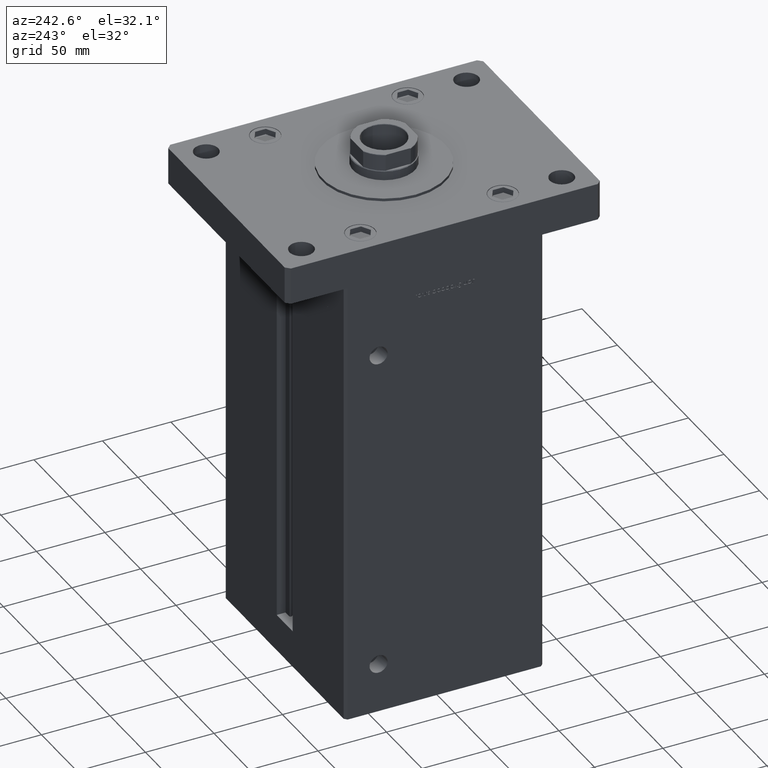
[diagram: clean part render]
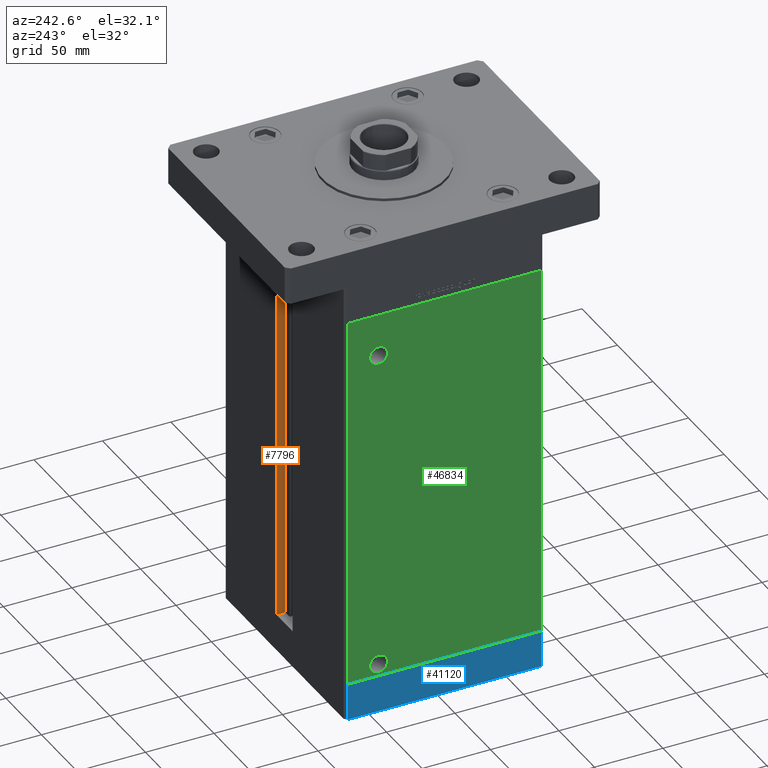
[diagram: same view with three faces highlighted in distinct colors, each labeled with its STEP entity id]
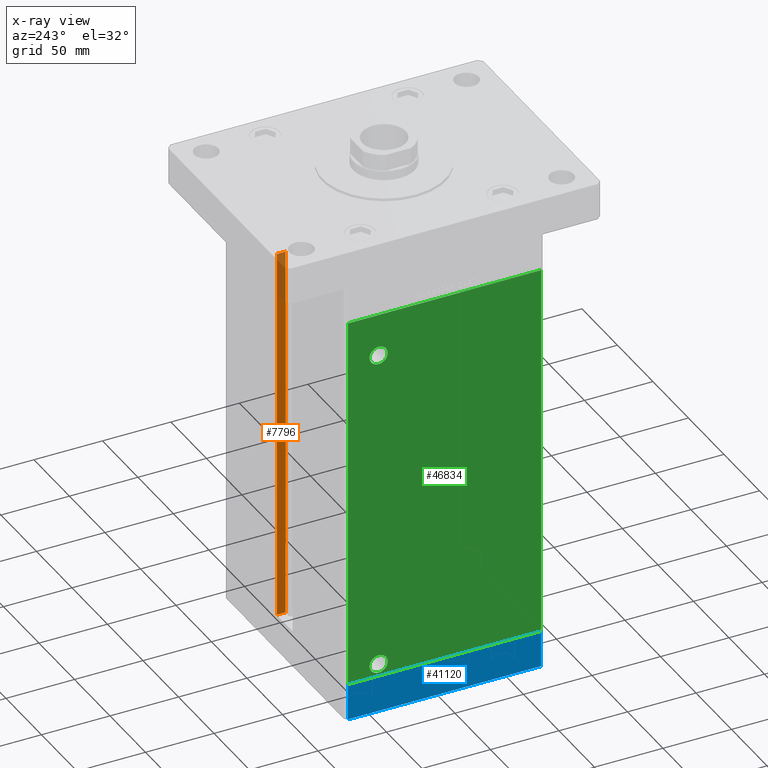
[diagram: x-ray of the same camera — body ghosted, the three highlighted faces saturated]
A machine part, auxiliary view with three faces highlighted in distinct colors.
The next image is the same camera in x-ray (body ghosted, the three faces saturated) — at least one of them is partly hidden behind the body in this view.
Their STEP definitions:

[orange] entity #7796 — the highlighted planar face has unit normal (1, 0, 0).
#1985 = CARTESIAN_POINT ( 'NONE',  ( 11.25000000000000178, 72.49999999999998579, 0.000000000000000000 ) ) ;
#2311 = DIRECTION ( 'NONE',  ( 1.000000000000000000, -0.000000000000000000, 0.000000000000000000 ) ) ;
#3695 = VECTOR ( 'NONE', #22040, 1000.000000000000000 ) ;
#5653 = AXIS2_PLACEMENT_3D ( 'NONE', #34814, #2311, #6390 ) ;
#6348 = EDGE_CURVE ( 'NONE', #15398, #16970, #12956, .T. ) ;
#6390 = DIRECTION ( 'NONE',  ( 0.000000000000000000, 0.000000000000000000, -1.000000000000000000 ) ) ;
#7796 = ADVANCED_FACE ( 'NONE', ( #42675 ), #26939, .F. ) ;
#10328 = LINE ( 'NONE', #26021, #31974 ) ;
#12689 = CARTESIAN_POINT ( 'NONE',  ( 11.25000000000000178, 65.99999999999997158, 0.000000000000000000 ) ) ;
#12956 = LINE ( 'NONE', #12689, #30654 ) ;
#15398 = VERTEX_POINT ( 'NONE', #30391 ) ;
#16970 = VERTEX_POINT ( 'NONE', #44072 ) ;
#21349 = DIRECTION ( 'NONE',  ( -0.000000000000000000, -0.000000000000000000, 1.000000000000000000 ) ) ;
#22040 = DIRECTION ( 'NONE',  ( -0.000000000000000000, -0.000000000000000000, 1.000000000000000000 ) ) ;
#22061 = EDGE_CURVE ( 'NONE', #15398, #25578, #43511, .T. ) ;
#25578 = VERTEX_POINT ( 'NONE', #1985 ) ;
#26021 = CARTESIAN_POINT ( 'NONE',  ( 11.25000000000000178, 0.000000000000000000, 276.0000000000000000 ) ) ;
#26820 = DIRECTION ( 'NONE',  ( -0.000000000000000000, -1.000000000000000000, 0.000000000000000000 ) ) ;
#26939 = PLANE ( 'NONE',  #5653 ) ;
#30391 = CARTESIAN_POINT ( 'NONE',  ( 11.25000000000000178, 65.99999999999997158, 0.000000000000000000 ) ) ;
#30654 = VECTOR ( 'NONE', #21349, 1000.000000000000000 ) ;
#30979 = ORIENTED_EDGE ( 'NONE', *, *, #6348, .T. ) ;
#30983 = VECTOR ( 'NONE', #48108, 1000.000000000000000 ) ;
#31974 = VECTOR ( 'NONE', #26820, 1000.000000000000000 ) ;
#32712 = CARTESIAN_POINT ( 'NONE',  ( 11.24999999999999467, 72.49999999999998579, 276.0000000000000000 ) ) ;
#34715 = ORIENTED_EDGE ( 'NONE', *, *, #22061, .F. ) ;
#34814 = CARTESIAN_POINT ( 'NONE',  ( 11.25000000000000178, 65.99999999999997158, 0.000000000000000000 ) ) ;
#36162 = VERTEX_POINT ( 'NONE', #32712 ) ;
#40948 = EDGE_CURVE ( 'NONE', #36162, #16970, #10328, .T. ) ;
#42341 = CARTESIAN_POINT ( 'NONE',  ( 11.25000000000000178, 72.49999999999998579, 0.000000000000000000 ) ) ;
#42675 = FACE_OUTER_BOUND ( 'NONE', #53171, .T. ) ;
#43246 = CARTESIAN_POINT ( 'NONE',  ( 11.25000000000000178, 65.99999999999997158, 0.000000000000000000 ) ) ;
#43511 = LINE ( 'NONE', #43246, #30983 ) ;
#44072 = CARTESIAN_POINT ( 'NONE',  ( 11.25000000000000178, 65.99999999999997158, 276.0000000000000000 ) ) ;
#48108 = DIRECTION ( 'NONE',  ( 0.000000000000000000, 1.000000000000000000, 0.000000000000000000 ) ) ;
#48709 = EDGE_CURVE ( 'NONE', #25578, #36162, #51268, .T. ) ;
#50220 = ORIENTED_EDGE ( 'NONE', *, *, #48709, .F. ) ;
#50919 = ORIENTED_EDGE ( 'NONE', *, *, #40948, .F. ) ;
#51268 = LINE ( 'NONE', #42341, #3695 ) ;
#53171 = EDGE_LOOP ( 'NONE', ( #50220, #34715, #30979, #50919 ) ) ;

[blue] entity #41120 — the highlighted planar face has unit normal (-1, 0, 0).
#35 = EDGE_LOOP ( 'NONE', ( #41368, #45046, #2534, #14092 ) ) ;
#2534 = ORIENTED_EDGE ( 'NONE', *, *, #40686, .T. ) ;
#4060 = DIRECTION ( 'NONE',  ( 1.000000000000000000, 5.905441620346577238E-16, -0.000000000000000000 ) ) ;
#4095 = VERTEX_POINT ( 'NONE', #36349 ) ;
#4958 = CARTESIAN_POINT ( 'NONE',  ( 85.00000000000001421, -70.50000000000000000, 0.000000000000000000 ) ) ;
#8493 = EDGE_CURVE ( 'NONE', #10325, #46350, #28143, .T. ) ;
#10325 = VERTEX_POINT ( 'NONE', #4958 ) ;
#10850 = CARTESIAN_POINT ( 'NONE',  ( 85.00000000000001421, -70.50000000000000000, 0.000000000000000000 ) ) ;
#14092 = ORIENTED_EDGE ( 'NONE', *, *, #23794, .T. ) ;
#14714 = DIRECTION ( 'NONE',  ( -5.905441620346577238E-16, 1.000000000000000000, 0.000000000000000000 ) ) ;
#15830 = CARTESIAN_POINT ( 'NONE',  ( 84.99999999999994316, 70.50000000000000000, -27.00000000000000000 ) ) ;
#18261 = LINE ( 'NONE', #43678, #40645 ) ;
#18273 = CARTESIAN_POINT ( 'NONE',  ( 84.99999999999994316, 70.50000000000000000, 0.000000000000000000 ) ) ;
#19943 = AXIS2_PLACEMENT_3D ( 'NONE', #33326, #4060, #20581 ) ;
#20581 = DIRECTION ( 'NONE',  ( -5.905441620346577238E-16, 1.000000000000000000, 0.000000000000000000 ) ) ;
#20842 = FACE_OUTER_BOUND ( 'NONE', #35, .T. ) ;
#22091 = VECTOR ( 'NONE', #39800, 1000.000000000000000 ) ;
#23794 = EDGE_CURVE ( 'NONE', #52512, #46350, #41705, .T. ) ;
#28143 = LINE ( 'NONE', #10850, #22091 ) ;
#28263 = DIRECTION ( 'NONE',  ( 0.000000000000000000, 0.000000000000000000, 1.000000000000000000 ) ) ;
#31960 = LINE ( 'NONE', #41160, #41672 ) ;
#33326 = CARTESIAN_POINT ( 'NONE',  ( 85.00000000000001421, -70.50000000000000000, -27.00000000000000000 ) ) ;
#33818 = PLANE ( 'NONE',  #19943 ) ;
#36349 = CARTESIAN_POINT ( 'NONE',  ( 85.00000000000001421, -70.50000000000000000, -27.00000000000000000 ) ) ;
#36841 = DIRECTION ( 'NONE',  ( 0.000000000000000000, 0.000000000000000000, 1.000000000000000000 ) ) ;
#37097 = VECTOR ( 'NONE', #28263, 1000.000000000000000 ) ;
#39569 = CARTESIAN_POINT ( 'NONE',  ( 84.99999999999994316, 70.50000000000000000, -27.00000000000000000 ) ) ;
#39800 = DIRECTION ( 'NONE',  ( -5.905441620346577238E-16, 1.000000000000000000, 0.000000000000000000 ) ) ;
#40645 = VECTOR ( 'NONE', #14714, 1000.000000000000000 ) ;
#40686 = EDGE_CURVE ( 'NONE', #4095, #52512, #18261, .T. ) ;
#41120 = ADVANCED_FACE ( 'NONE', ( #20842 ), #33818, .T. ) ;
#41160 = CARTESIAN_POINT ( 'NONE',  ( 85.00000000000001421, -70.50000000000000000, -27.00000000000000000 ) ) ;
#41368 = ORIENTED_EDGE ( 'NONE', *, *, #8493, .F. ) ;
#41672 = VECTOR ( 'NONE', #36841, 1000.000000000000000 ) ;
#41705 = LINE ( 'NONE', #15830, #37097 ) ;
#43678 = CARTESIAN_POINT ( 'NONE',  ( 85.00000000000001421, -70.50000000000000000, -27.00000000000000000 ) ) ;
#45046 = ORIENTED_EDGE ( 'NONE', *, *, #46982, .F. ) ;
#46350 = VERTEX_POINT ( 'NONE', #18273 ) ;
#46982 = EDGE_CURVE ( 'NONE', #4095, #10325, #31960, .T. ) ;
#52512 = VERTEX_POINT ( 'NONE', #39569 ) ;

[green] entity #46834 — the highlighted planar face has unit normal (1, 0, 0).
#125 = DIRECTION ( 'NONE',  ( -1.000000000000000000, -2.275047181608927644E-16, 0.000000000000000000 ) ) ;
#178 = AXIS2_PLACEMENT_3D ( 'NONE', #34301, #31015, #5598 ) ;
#418 = ORIENTED_EDGE ( 'NONE', *, *, #50725, .F. ) ;
#2441 = CARTESIAN_POINT ( 'NONE',  ( -85.00000000000001421, 70.49999999999998579, 276.0000000000000000 ) ) ;
#2466 = DIRECTION ( 'NONE',  ( 1.000000000000000000, 1.968480540115525417E-16, -0.000000000000000000 ) ) ;
#2765 = EDGE_LOOP ( 'NONE', ( #21562, #418 ) ) ;
#3659 = VECTOR ( 'NONE', #12861, 1000.000000000000000 ) ;
#4995 = DIRECTION ( 'NONE',  ( 0.000000000000000000, -1.000000000000000000, 0.000000000000000000 ) ) ;
#5598 = DIRECTION ( 'NONE',  ( 0.000000000000000000, -1.000000000000000000, 0.000000000000000000 ) ) ;
#5613 = DIRECTION ( 'NONE',  ( 1.968480540115525664E-16, -1.000000000000000000, 0.000000000000000000 ) ) ;
#6170 = CARTESIAN_POINT ( 'NONE',  ( -85.00000000000001421, 54.58000000000004093, 245.0000000000000000 ) ) ;
#6275 = PLANE ( 'NONE',  #37346 ) ;
#9437 = EDGE_CURVE ( 'NONE', #24141, #44760, #37644, .T. ) ;
#9656 = LINE ( 'NONE', #25876, #13211 ) ;
#10795 = EDGE_CURVE ( 'NONE', #36559, #29943, #51533, .T. ) ;
#11331 = VERTEX_POINT ( 'NONE', #40933 ) ;
#11472 = VECTOR ( 'NONE', #26003, 1000.000000000000000 ) ;
#11544 = CIRCLE ( 'NONE', #47020, 6.580000000000002736 ) ;
#11770 = AXIS2_PLACEMENT_3D ( 'NONE', #14618, #44119, #31382 ) ;
#11800 = ORIENTED_EDGE ( 'NONE', *, *, #32516, .F. ) ;
#12861 = DIRECTION ( 'NONE',  ( -0.000000000000000000, -0.000000000000000000, -1.000000000000000000 ) ) ;
#13211 = VECTOR ( 'NONE', #14251, 1000.000000000000000 ) ;
#14251 = DIRECTION ( 'NONE',  ( 1.968480540115525664E-16, -1.000000000000000000, 0.000000000000000000 ) ) ;
#14618 = CARTESIAN_POINT ( 'NONE',  ( -85.00000000000001421, 47.99999999999997868, 9.000000000000000000 ) ) ;
#14801 = EDGE_LOOP ( 'NONE', ( #11800, #16487 ) ) ;
#16487 = ORIENTED_EDGE ( 'NONE', *, *, #9437, .F. ) ;
#16611 = VERTEX_POINT ( 'NONE', #2441 ) ;
#20110 = CIRCLE ( 'NONE', #178, 6.580000000000044480 ) ;
#20342 = VERTEX_POINT ( 'NONE', #22361 ) ;
#20720 = CARTESIAN_POINT ( 'NONE',  ( -85.00000000000001421, 47.99999999999997868, 9.000000000000000000 ) ) ;
#21562 = ORIENTED_EDGE ( 'NONE', *, *, #10795, .F. ) ;
#22361 = CARTESIAN_POINT ( 'NONE',  ( -84.99999999999998579, -70.50000000000001421, 0.000000000000000000 ) ) ;
#22785 = CARTESIAN_POINT ( 'NONE',  ( -85.00000000000001421, 70.49999999999998579, 276.0000000000000000 ) ) ;
#23010 = ORIENTED_EDGE ( 'NONE', *, *, #47522, .F. ) ;
#23309 = DIRECTION ( 'NONE',  ( -1.968480540115525417E-16, 1.000000000000000000, 0.000000000000000000 ) ) ;
#24141 = VERTEX_POINT ( 'NONE', #6170 ) ;
#25690 = DIRECTION ( 'NONE',  ( -1.000000000000000000, -2.275047181608927644E-16, 0.000000000000000000 ) ) ;
#25876 = CARTESIAN_POINT ( 'NONE',  ( -85.00000000000001421, 70.49999999999998579, 276.0000000000000000 ) ) ;
#26003 = DIRECTION ( 'NONE',  ( -0.000000000000000000, -0.000000000000000000, -1.000000000000000000 ) ) ;
#26574 = FACE_BOUND ( 'NONE', #2765, .T. ) ;
#26705 = CARTESIAN_POINT ( 'NONE',  ( -85.00000000000001421, 70.49999999999998579, 0.000000000000000000 ) ) ;
#26969 = LINE ( 'NONE', #26705, #43421 ) ;
#27101 = FACE_BOUND ( 'NONE', #14801, .T. ) ;
#29943 = VERTEX_POINT ( 'NONE', #44095 ) ;
#30066 = LINE ( 'NONE', #46064, #11472 ) ;
#31015 = DIRECTION ( 'NONE',  ( -1.000000000000000000, -2.275047181608927644E-16, 0.000000000000000000 ) ) ;
#31382 = DIRECTION ( 'NONE',  ( 0.000000000000000000, -1.000000000000000000, 0.000000000000000000 ) ) ;
#31721 = ORIENTED_EDGE ( 'NONE', *, *, #48021, .T. ) ;
#32516 = EDGE_CURVE ( 'NONE', #44760, #24141, #20110, .T. ) ;
#34301 = CARTESIAN_POINT ( 'NONE',  ( -85.00000000000001421, 47.99999999999999289, 245.0000000000000000 ) ) ;
#34628 = CARTESIAN_POINT ( 'NONE',  ( -85.00000000000001421, 47.99999999999999289, 245.0000000000000000 ) ) ;
#36559 = VERTEX_POINT ( 'NONE', #43501 ) ;
#37346 = AXIS2_PLACEMENT_3D ( 'NONE', #22785, #2466, #23309 ) ;
#37644 = CIRCLE ( 'NONE', #44582, 6.580000000000044480 ) ;
#40182 = CARTESIAN_POINT ( 'NONE',  ( -85.00000000000001421, 70.49999999999998579, 0.000000000000000000 ) ) ;
#40401 = CARTESIAN_POINT ( 'NONE',  ( -85.00000000000001421, 41.41999999999995197, 245.0000000000000000 ) ) ;
#40933 = CARTESIAN_POINT ( 'NONE',  ( -84.99999999999998579, -70.50000000000001421, 276.0000000000000000 ) ) ;
#43421 = VECTOR ( 'NONE', #5613, 1000.000000000000000 ) ;
#43501 = CARTESIAN_POINT ( 'NONE',  ( -85.00000000000001421, 41.41999999999998039, 9.000000000000000000 ) ) ;
#44095 = CARTESIAN_POINT ( 'NONE',  ( -85.00000000000001421, 54.57999999999998408, 9.000000000000000000 ) ) ;
#44119 = DIRECTION ( 'NONE',  ( -1.000000000000000000, -2.275047181608927644E-16, 0.000000000000000000 ) ) ;
#44163 = FACE_OUTER_BOUND ( 'NONE', #49631, .T. ) ;
#44582 = AXIS2_PLACEMENT_3D ( 'NONE', #34628, #25690, #50873 ) ;
#44760 = VERTEX_POINT ( 'NONE', #40401 ) ;
#46064 = CARTESIAN_POINT ( 'NONE',  ( -85.00000000000001421, 70.49999999999998579, 276.0000000000000000 ) ) ;
#46387 = ORIENTED_EDGE ( 'NONE', *, *, #48417, .F. ) ;
#46834 = ADVANCED_FACE ( 'NONE', ( #26574, #27101, #44163 ), #6275, .F. ) ;
#46903 = CARTESIAN_POINT ( 'NONE',  ( -84.99999999999998579, -70.50000000000001421, 276.0000000000000000 ) ) ;
#47020 = AXIS2_PLACEMENT_3D ( 'NONE', #20720, #125, #4995 ) ;
#47174 = LINE ( 'NONE', #46903, #3659 ) ;
#47351 = EDGE_CURVE ( 'NONE', #53285, #20342, #26969, .T. ) ;
#47522 = EDGE_CURVE ( 'NONE', #11331, #20342, #47174, .T. ) ;
#48021 = EDGE_CURVE ( 'NONE', #16611, #53285, #30066, .T. ) ;
#48417 = EDGE_CURVE ( 'NONE', #16611, #11331, #9656, .T. ) ;
#49631 = EDGE_LOOP ( 'NONE', ( #52841, #23010, #46387, #31721 ) ) ;
#50725 = EDGE_CURVE ( 'NONE', #29943, #36559, #11544, .T. ) ;
#50873 = DIRECTION ( 'NONE',  ( 0.000000000000000000, -1.000000000000000000, 0.000000000000000000 ) ) ;
#51533 = CIRCLE ( 'NONE', #11770, 6.580000000000002736 ) ;
#52841 = ORIENTED_EDGE ( 'NONE', *, *, #47351, .T. ) ;
#53285 = VERTEX_POINT ( 'NONE', #40182 ) ;